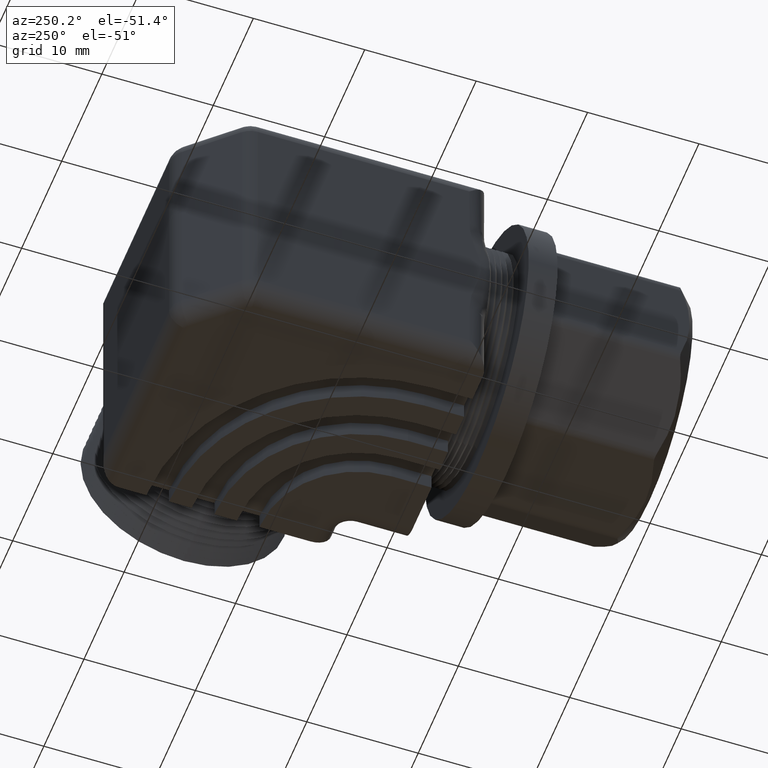
[diagram: clean part render]
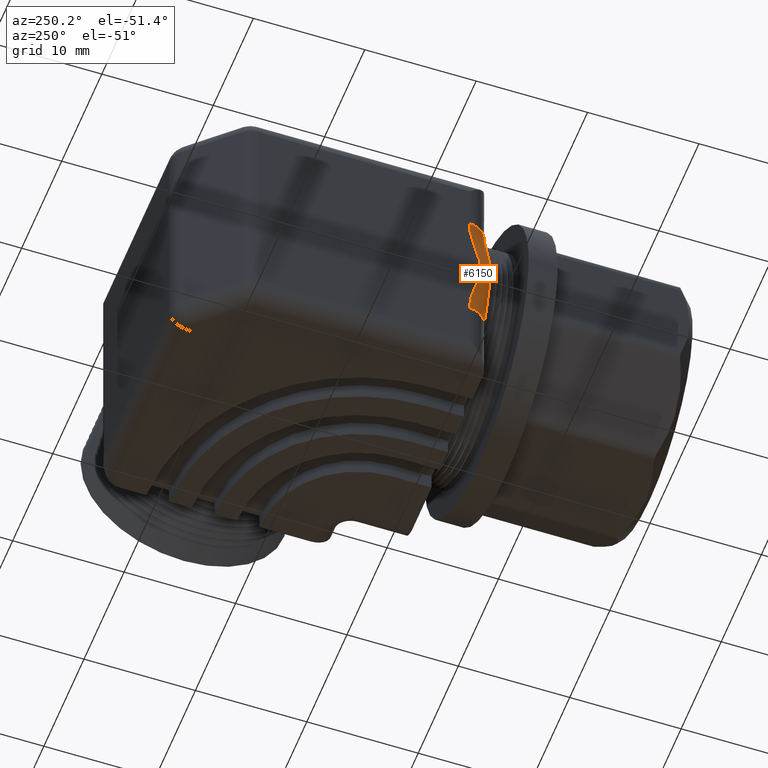
[diagram: same view with one face highlighted and labeled with its STEP entity id]
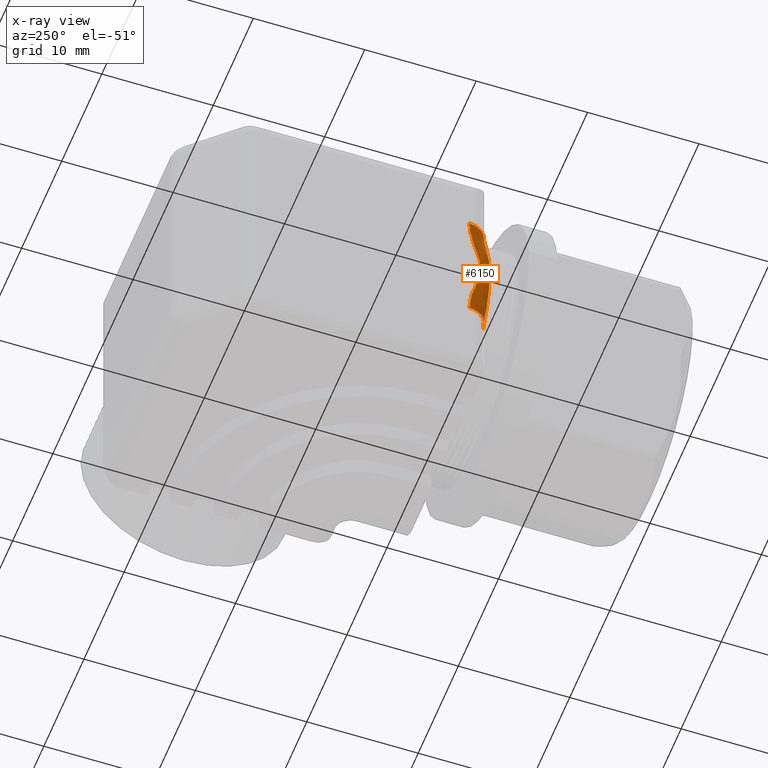
[diagram: x-ray of the same camera — body ghosted, the highlighted face saturated]
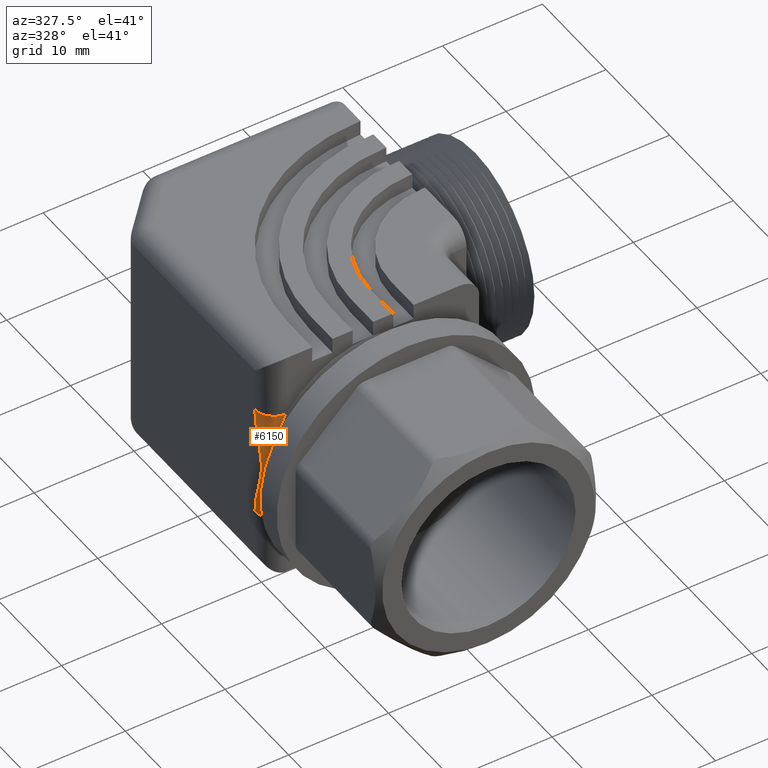
[diagram: same view with one face highlighted and labeled with its STEP entity id]
A machine part, auxiliary view. The second image highlights one B-rep face of the part: STEP entity #6150.
The next image is the same camera in x-ray: the body ghosted, the highlighted face saturated — about 0% of this face is hidden behind the body in this view.
A second angle (auxiliary view) of the same face is appended — the face is thin or edge-on in the first view.
In plain terms, the highlighted face is a freeform B-spline surface patch.
Its self-contained STEP definition (entity closure, byte-faithful):
#189 = VERTEX_POINT ( 'NONE', #2006 ) ;
#418 = EDGE_CURVE ( 'NONE', #189, #444, #2413, .T. ) ;
#444 = VERTEX_POINT ( 'NONE', #2442 ) ;
#594 = VERTEX_POINT ( 'NONE', #2727 ) ;
#2006 = CARTESIAN_POINT ( 'NONE',  ( -0.3430177550000000900, 0.7140000000000000800, -0.2245858850301147000 ) ) ;
#2409 = DIRECTION ( 'NONE',  ( 0.0000000000000000000, 0.0000000000000000000, 1.000000000000000000 ) ) ;
#2410 = DIRECTION ( 'NONE',  ( 0.0000000000000000000, 1.000000000000000000, 0.0000000000000000000 ) ) ;
#2411 = CARTESIAN_POINT ( 'NONE',  ( 0.0000000000000000000, 0.7140000000000000800, 0.0000000000000000000 ) ) ;
#2412 = AXIS2_PLACEMENT_3D ( 'NONE', #2411, #2410, #2409 ) ;
#2413 = CIRCLE ( 'NONE', #2412, 0.4099999999999999800 ) ;
#2442 = CARTESIAN_POINT ( 'NONE',  ( -0.3430177550000000900, 0.7140000000000000800, 0.2245858850301147000 ) ) ;
#2727 = CARTESIAN_POINT ( 'NONE',  ( -0.4180177550000001000, 0.7890000000000001500, -0.2245858850301147600 ) ) ;
#5023 =( BOUNDED_SURFACE ( )  B_SPLINE_SURFACE ( 3, 2, ( 
 ( #5052, #5051, #5050 ),
 ( #5049, #5048, #5047 ),
 ( #5046, #5045, #5044 ),
 ( #5043, #5042, #5041 ),
 ( #5040, #5039, #5038 ),
 ( #5037, #5036, #5035 ),
 ( #5101, #5100, #5099 ),
 ( #5098, #5097, #5096 ),
 ( #5095, #5094, #5093 ),
 ( #5092, #5091, #5090 ),
 ( #5089, #5088, #5087 ),
 ( #5086, #5085, #5084 ),
 ( #5083, #5082, #5081 ),
 ( #5080, #5079, #5078 ),
 ( #5077, #5076, #5075 ),
 ( #5074, #5073, #5072 ),
 ( #5071, #5070, #5069 ),
 ( #5068, #5067, #5066 ),
 ( #5065, #5064, #5063 ),
 ( #5119, #5118, #5117 ) ),
 .UNSPECIFIED., .F., .F., .F. ) 
 B_SPLINE_SURFACE_WITH_KNOTS ( ( 4, 2, 2, 2, 2, 2, 2, 2, 2, 4 ),
 ( 3, 3 ),
 ( 0.003929175088035627400, 0.005385896128873126800, 0.006842617169710625400, 0.008299338210548123900, 0.009756059251385623300, 0.01048441977180437200, 0.01121278029222312300, 0.01266950133306062000, 0.01412622237389812000, 0.01558294341473561900 ),
 ( 0.0000000000000000000, 1.000000000000000000 ),
 .UNSPECIFIED. ) 
 GEOMETRIC_REPRESENTATION_ITEM ( )  RATIONAL_B_SPLINE_SURFACE ( (
 ( 1.000000000000000000, 0.7071067811865484600, 1.000000000000000000),
 ( 1.000000000000000000, 0.7484838788120661300, 1.000000000000000000),
 ( 1.000000000000000000, 0.7854703454998706000, 1.000000000000000000),
 ( 1.000000000000000000, 0.8501223032901563700, 1.000000000000000000),
 ( 1.000000000000000000, 0.8779124199793685300, 1.000000000000000000),
 ( 1.000000000000000000, 0.9236327967449365900, 1.000000000000000000),
 ( 1.000000000000000000, 0.9415388150523443800, 1.000000000000000000),
 ( 1.000000000000000000, 0.9661304803620548400, 1.000000000000000000),
 ( 1.000000000000000000, 0.9728577039713959300, 1.000000000000000000),
 ( 1.000000000000000000, 0.9729314517843520300, 1.000000000000000000),
 ( 1.000000000000000000, 0.9712497351355784400, 1.000000000000000000),
 ( 1.000000000000000000, 0.9648166957466886000, 1.000000000000000000),
 ( 1.000000000000000000, 0.9600676329649119300, 1.000000000000000000),
 ( 1.000000000000000000, 0.9415864893189916900, 1.000000000000000000),
 ( 1.000000000000000000, 0.9236271530469070100, 1.000000000000000000),
 ( 1.000000000000000000, 0.8777211464986062200, 1.000000000000000000),
 ( 1.000000000000000000, 0.8497898024105504700, 1.000000000000000000),
 ( 1.000000000000000000, 0.7851191521542325600, 1.000000000000000000),
 ( 1.000000000000000000, 0.7483843353127755900, 1.000000000000000000),
 ( 1.000000000000000000, 0.7071067811865469100, 1.000000000000000000) ) ) 
 REPRESENTATION_ITEM ( '' )  SURFACE ( )  );
#5030 = FACE_OUTER_BOUND ( 'NONE', #6279, .T. ) ;
#5035 = CARTESIAN_POINT ( 'NONE',  ( -0.3959039982275305800, 0.7139999999704138600, 0.1084236611716153400 ) ) ;
#5036 = CARTESIAN_POINT ( 'NONE',  ( -0.4180177549999838900, 0.7356165413853412700, 0.1027527448745511300 ) ) ;
#5037 = CARTESIAN_POINT ( 'NONE',  ( -0.4180177550000000500, 0.7656998325651279700, 0.09365265866072283700 ) ) ;
#5038 = CARTESIAN_POINT ( 'NONE',  ( -0.3835488993651364200, 0.7140000000295863000, 0.1462392148711941200 ) ) ;
#5039 = CARTESIAN_POINT ( 'NONE',  ( -0.4180177550000169800, 0.7358798360543447000, 0.1411718381054284400 ) ) ;
#5040 = CARTESIAN_POINT ( 'NONE',  ( -0.4180177550000000500, 0.7756211275160223000, 0.1304888854706534600 ) ) ;
#5041 = CARTESIAN_POINT ( 'NONE',  ( -0.3762671991900878300, 0.7139999999791354400, 0.1638567706426790900 ) ) ;
#5042 = CARTESIAN_POINT ( 'NONE',  ( -0.4180177550000159200, 0.7346838607078028900, 0.1600398513571290000 ) ) ;
#5043 = CARTESIAN_POINT ( 'NONE',  ( -0.4180177550000000500, 0.7801700698186953000, 0.1489827853787591400 ) ) ;
#5044 = CARTESIAN_POINT ( 'NONE',  ( -0.3604055592681106300, 0.7140000000208643900, 0.1963004824365676100 ) ) ;
#5045 = CARTESIAN_POINT ( 'NONE',  ( -0.4180177549999828900, 0.7281404052475050100, 0.1952615771595204700 ) ) ;
#5046 = CARTESIAN_POINT ( 'NONE',  ( -0.4180177550000000500, 0.7868370856392942200, 0.1864180584281192000 ) ) ;
#5047 = CARTESIAN_POINT ( 'NONE',  ( -0.3517960681091064100, 0.7140000000000000800, 0.2111784654481135300 ) ) ;
#5048 = CARTESIAN_POINT ( 'NONE',  ( -0.4180177549999369900, 0.7223320096126978300, 0.2118601185827435900 ) ) ;
#5049 = CARTESIAN_POINT ( 'NONE',  ( -0.4180177550000001000, 0.7889999996700614000, 0.2054205583416250900 ) ) ;
#5050 = CARTESIAN_POINT ( 'NONE',  ( -0.3430177550000003100, 0.7140000000000000800, 0.2245858850301144500 ) ) ;
#5051 = CARTESIAN_POINT ( 'NONE',  ( -0.4180177550000001600, 0.7140000000000004100, 0.2245858850301144500 ) ) ;
#5052 = CARTESIAN_POINT ( 'NONE',  ( -0.4180177550000001000, 0.7890000000000001500, 0.2245858850301145300 ) ) ;
#5063 = CARTESIAN_POINT ( 'NONE',  ( -0.3517786113667509800, 0.7140000000000000800, -0.2112051276532550500 ) ) ;
#5064 = CARTESIAN_POINT ( 'NONE',  ( -0.4180177550000472900, 0.7223151500512176000, -0.2118858684099428600 ) ) ;
#5065 = CARTESIAN_POINT ( 'NONE',  ( -0.4180177550000000500, 0.7889999995706226100, -0.2054620862802477000 ) ) ;
#5066 = CARTESIAN_POINT ( 'NONE',  ( -0.3603227315280467200, 0.7140000000222274100, -0.1964506857473163900 ) ) ;
#5067 = CARTESIAN_POINT ( 'NONE',  ( -0.4180177550000002700, 0.7280918987070489300, -0.1954262524432238100 ) ) ;
#5068 = CARTESIAN_POINT ( 'NONE',  ( -0.4180177550000002100, 0.7868613938096658000, -0.1866042106758039600 ) ) ;
#5069 = CARTESIAN_POINT ( 'NONE',  ( -0.3761823252006620300, 0.7139999999777728600, -0.1640493855606398900 ) ) ;
#5070 = CARTESIAN_POINT ( 'NONE',  ( -0.4180177550000002100, 0.7346619146126095500, -0.1602461291977083900 ) ) ;
#5071 = CARTESIAN_POINT ( 'NONE',  ( -0.4180177550000002100, 0.7802161400685869700, -0.1491923300475938600 ) ) ;
#5072 = CARTESIAN_POINT ( 'NONE',  ( -0.3834978906222867900, 0.7140000000292671100, -0.1463818870994751700 ) ) ;
#5073 = CARTESIAN_POINT ( 'NONE',  ( -0.4180177549999659600, 0.7358773137433232100, -0.1413226526630577100 ) ) ;
#5074 = CARTESIAN_POINT ( 'NONE',  ( -0.4180177550000001000, 0.7756583872523809000, -0.1306316557196582600 ) ) ;
#5075 = CARTESIAN_POINT ( 'NONE',  ( -0.3959017965983768200, 0.7139999999707331600, -0.1084437936321409200 ) ) ;
#5076 = CARTESIAN_POINT ( 'NONE',  ( -0.4180177550000324100, 0.7356200557621829200, -0.1027745884235943000 ) ) ;
#5077 = CARTESIAN_POINT ( 'NONE',  ( -0.4180177550000001000, 0.7657052855623468500, -0.09366849311054856200 ) ) ;
#5078 = CARTESIAN_POINT ( 'NONE',  ( -0.4009827523397917500, 0.7140000000284624200, -0.08820459549048620400 ) ) ;
#5079 = CARTESIAN_POINT ( 'NONE',  ( -0.4180177549999832800, 0.7342615128321746700, -0.08279573356850177000 ) ) ;
#5080 = CARTESIAN_POINT ( 'NONE',  ( -0.4180177550000001000, 0.7602467808536072000, -0.07529061508224965700 ) ) ;
#5081 = CARTESIAN_POINT ( 'NONE',  ( -0.4062715414417133500, 0.7139999999857689100, -0.05621600472966652900 ) ) ;
#5082 = CARTESIAN_POINT ( 'NONE',  ( -0.4180177550000081500, 0.7320761006904145100, -0.05224750895273994100 ) ) ;
#5083 = CARTESIAN_POINT ( 'NONE',  ( -0.4180177550000001000, 0.7534558600894678500, -0.04742323711171693400 ) ) ;
#5084 = CARTESIAN_POINT ( 'NONE',  ( -0.4076468915406387100, 0.7140000000146155000, -0.04528009959054640100 ) ) ;
#5085 = CARTESIAN_POINT ( 'NONE',  ( -0.4180177549999917800, 0.7313399289826993900, -0.04197565598853643400 ) ) ;
#5086 = CARTESIAN_POINT ( 'NONE',  ( -0.4180177550000002100, 0.7514455050039010600, -0.03807961108772841400 ) ) ;
#5087 = CARTESIAN_POINT ( 'NONE',  ( -0.4095151103185516500, 0.7139999999853846600, -0.02288340030111641500 ) ) ;
#5088 = CARTESIAN_POINT ( 'NONE',  ( -0.4180177550000085400, 0.7302539516986216200, -0.02115523174640137500 ) ) ;
#5089 = CARTESIAN_POINT ( 'NONE',  ( -0.4180177550000002100, 0.7485698083658712800, -0.01914598347634610700 ) ) ;
#5090 = CARTESIAN_POINT ( 'NONE',  ( -0.4100070964138329300, 0.7139999999879771400, -0.01133467854834258700 ) ) ;
#5091 = CARTESIAN_POINT ( 'NONE',  ( -0.4180177550000084800, 0.7299126183284175800, -0.01046081647208804700 ) ) ;
#5092 = CARTESIAN_POINT ( 'NONE',  ( -0.4180177550000000500, 0.7477280839123442400, -0.009482922645106845900 ) ) ;
#5093 = CARTESIAN_POINT ( 'NONE',  ( -0.4099855714162970500, 0.7140000000240461800, 0.02343090801130782300 ) ) ;
#5094 = CARTESIAN_POINT ( 'NONE',  ( -0.4180177549999833900, 0.7299267827932713900, 0.02162611053369301000 ) ) ;
#5095 = CARTESIAN_POINT ( 'NONE',  ( -0.4180177550000000500, 0.7477638349533629600, 0.01960298074173030100 ) ) ;
#5096 = CARTESIAN_POINT ( 'NONE',  ( -0.4080062926487271800, 0.7139999999723668500, 0.04576441830292075200 ) ) ;
#5097 = CARTESIAN_POINT ( 'NONE',  ( -0.4180177550000001600, 0.7313802700146697600, 0.04252133769459746200 ) ) ;
#5098 = CARTESIAN_POINT ( 'NONE',  ( -0.4180177550000001000, 0.7512321064764593300, 0.03831532561217757000 ) ) ;
#5099 = CARTESIAN_POINT ( 'NONE',  ( -0.4009693779012883900, 0.7140000000276333100, 0.08824440401170308100 ) ) ;
#5100 = CARTESIAN_POINT ( 'NONE',  ( -0.4180177550000001000, 0.7342642749551305800, 0.08283401284416036500 ) ) ;
#5101 = CARTESIAN_POINT ( 'NONE',  ( -0.4180177550000001000, 0.7602602271397568300, 0.07532815478891656500 ) ) ;
#5117 = CARTESIAN_POINT ( 'NONE',  ( -0.3430177549999999800, 0.7140000000000000800, -0.2245858850301149000 ) ) ;
#5118 = CARTESIAN_POINT ( 'NONE',  ( -0.4180177550000000500, 0.7139999999999998600, -0.2245858850301148700 ) ) ;
#5119 = CARTESIAN_POINT ( 'NONE',  ( -0.4180177550000000500, 0.7890000000000001500, -0.2245858850301147600 ) ) ;
#5354 = DIRECTION ( 'NONE',  ( 1.000000000000000000, 0.0000000000000000000, 0.0000000000000000000 ) ) ;
#5355 = DIRECTION ( 'NONE',  ( -0.0000000000000000000, -0.0000000000000000000, 1.000000000000000000 ) ) ;
#5356 = CARTESIAN_POINT ( 'NONE',  ( -0.3430177550000000900, 0.7890000000000014800, 0.2245858850301146500 ) ) ;
#5357 = AXIS2_PLACEMENT_3D ( 'NONE', #5356, #5355, #5354 ) ;
#5361 = CIRCLE ( 'NONE', #5357, 0.07499999999999998300 ) ;
#5479 = DIRECTION ( 'NONE',  ( 0.0000000000000000000, -1.000000000000000000, 4.553079989440436700E-016 ) ) ;
#5480 = DIRECTION ( 'NONE',  ( 0.0000000000000000000, 4.553079989440437700E-016, 1.000000000000000000 ) ) ;
#5481 = CARTESIAN_POINT ( 'NONE',  ( -0.3430177550000000900, 0.7890000000000001500, -0.2245858850301147600 ) ) ;
#5482 = AXIS2_PLACEMENT_3D ( 'NONE', #5481, #5480, #5479 ) ;
#5483 = CIRCLE ( 'NONE', #5482, 0.07500000000000002500 ) ;
#5649 = CARTESIAN_POINT ( 'NONE',  ( -0.4180177550000001000, 0.7890000000000001500, 0.2245858850301147000 ) ) ;
#5669 = CARTESIAN_POINT ( 'NONE',  ( -0.4180177550000002100, 0.7657690927960770800, 0.09389844438846581300 ) ) ;
#5670 = CARTESIAN_POINT ( 'NONE',  ( -0.4180177550000002100, 0.7603428644764093100, 0.07561412332469608100 ) ) ;
#5671 = CARTESIAN_POINT ( 'NONE',  ( -0.4180177550000001000, 0.7513103195737244100, 0.03868786442101795900 ) ) ;
#5672 = CARTESIAN_POINT ( 'NONE',  ( -0.4180177550000001000, 0.7478179772118611600, 0.02002310897123972500 ) ) ;
#5673 = CARTESIAN_POINT ( 'NONE',  ( -0.4180177550000001000, 0.7477028583277115500, -0.008982891480109226500 ) ) ;
#5674 = CARTESIAN_POINT ( 'NONE',  ( -0.4180177550000002700, 0.7485198416648839400, -0.01869304175436433500 ) ) ;
#5675 = CARTESIAN_POINT ( 'NONE',  ( -0.4180177550000002700, 0.7513640319731550400, -0.03766159486631644200 ) ) ;
#5676 = CARTESIAN_POINT ( 'NONE',  ( -0.4180177550000002100, 0.7533650135963562100, -0.04701746234601538600 ) ) ;
#5677 = CARTESIAN_POINT ( 'NONE',  ( -0.4180177550000001000, 0.7601394199948408000, -0.07491393854948443000 ) ) ;
#5678 = CARTESIAN_POINT ( 'NONE',  ( -0.4180177550000002100, 0.7656012132542788800, -0.09330185280566542800 ) ) ;
#5679 = CARTESIAN_POINT ( 'NONE',  ( -0.4180177550000002100, 0.7755714089871127400, -0.1302891632522387400 ) ) ;
#5680 = CARTESIAN_POINT ( 'NONE',  ( -0.4180177550000002100, 0.7801458930808267100, -0.1488663598284728500 ) ) ;
#5681 = CARTESIAN_POINT ( 'NONE',  ( -0.4180177550000001000, 0.7868337712043048700, -0.1863802004643545500 ) ) ;
#5688 = CARTESIAN_POINT ( 'NONE',  ( -0.4180177550000002100, 0.7890000000000007000, -0.2053173186790477300 ) ) ;
#5689 = CARTESIAN_POINT ( 'NONE',  ( -0.4180177550000001000, 0.7890000000000001500, -0.2245858850301147600 ) ) ;
#5690 = B_SPLINE_CURVE_WITH_KNOTS ( 'NONE', 3,
 ( #5689, #5688, #5681, #5680, #5679, #5678, #5677, #5676, #5675, #5674, #5673, #5672, #5671, #5670, #5669, #5731, #5730, #5729, #5728, #5727 ),
 .UNSPECIFIED., .F., .F.,
 ( 4, 2, 2, 2, 2, 2, 2, 2, 2, 4 ),
 ( 0.0000000000000000000, 0.001451373885923204700, 0.002902747771846409500, 0.004354121657769614700, 0.005079808600731215500, 0.005805495543692816400, 0.007256869429616019000, 0.008708243315539220700, 0.01015961720146242400, 0.01161099108738562600 ),
 .UNSPECIFIED. ) ;
#5727 = CARTESIAN_POINT ( 'NONE',  ( -0.4180177550000001000, 0.7890000000000001500, 0.2245858850301147000 ) ) ;
#5728 = CARTESIAN_POINT ( 'NONE',  ( -0.4180177550000002100, 0.7890000000000002600, 0.2054547232666012500 ) ) ;
#5729 = CARTESIAN_POINT ( 'NONE',  ( -0.4180177550000002100, 0.7868411878222207900, 0.1864622980033490100 ) ) ;
#5730 = CARTESIAN_POINT ( 'NONE',  ( -0.4180177550000001000, 0.7801961982065588300, 0.1491083865467550100 ) ) ;
#5731 = CARTESIAN_POINT ( 'NONE',  ( -0.4180177550000000500, 0.7756626024053988600, 0.1306543697448973900 ) ) ;
#6122 = ORIENTED_EDGE ( 'NONE', *, *, #418, .T. ) ;
#6150 = ADVANCED_FACE ( 'NONE', ( #5030 ), #5023, .T. ) ;
#6154 = ORIENTED_EDGE ( 'NONE', *, *, #6356, .T. ) ;
#6277 = ORIENTED_EDGE ( 'NONE', *, *, #6278, .F. ) ;
#6278 = EDGE_CURVE ( 'NONE', #6431, #444, #5361, .T. ) ;
#6279 = EDGE_LOOP ( 'NONE', ( #6154, #6122, #6277, #6349 ) ) ;
#6349 = ORIENTED_EDGE ( 'NONE', *, *, #6444, .F. ) ;
#6356 = EDGE_CURVE ( 'NONE', #594, #189, #5483, .T. ) ;
#6431 = VERTEX_POINT ( 'NONE', #5649 ) ;
#6444 = EDGE_CURVE ( 'NONE', #594, #6431, #5690, .T. ) ;